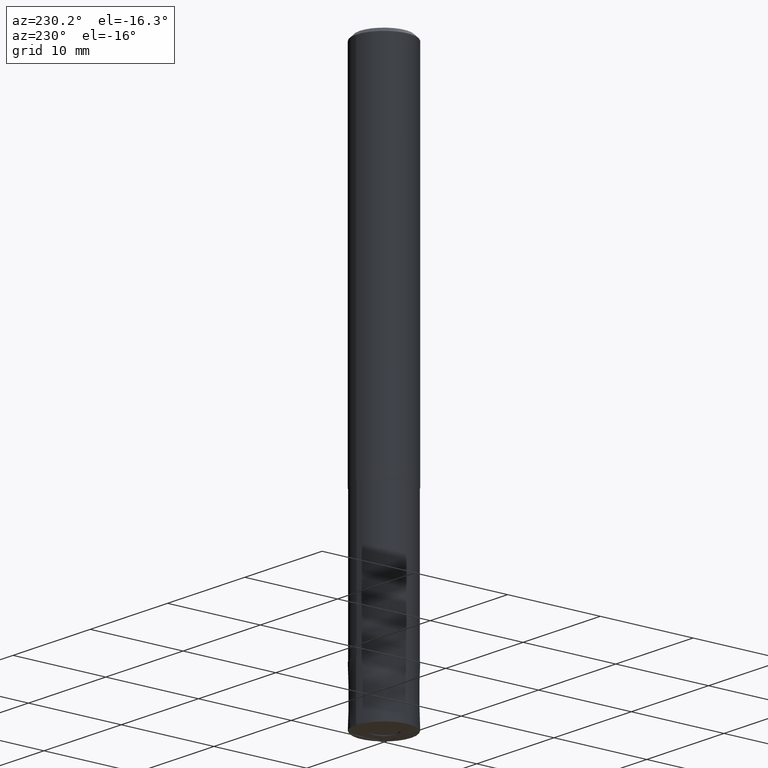
[diagram: clean part render]
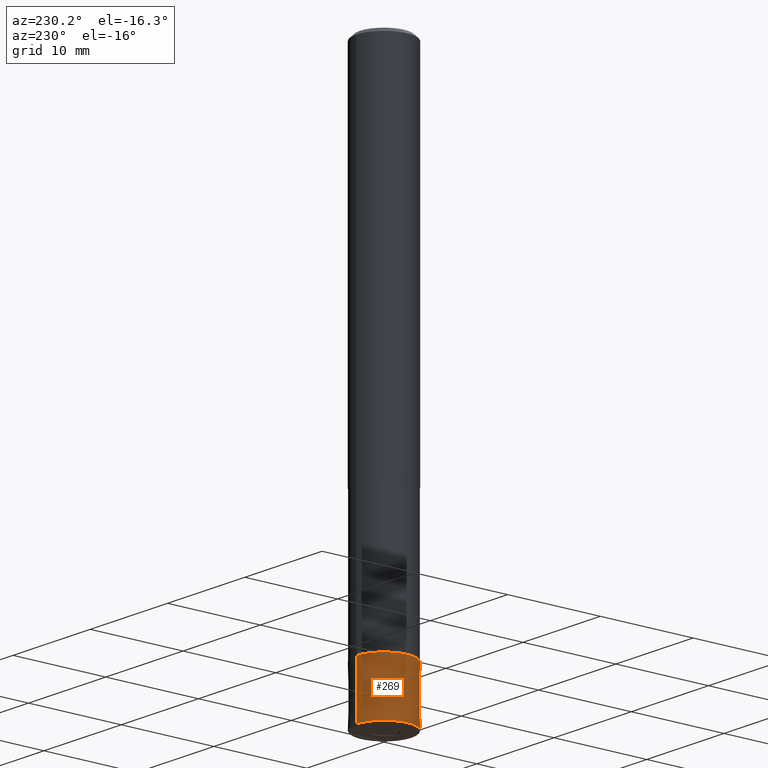
[diagram: same view with one face highlighted and labeled with its STEP entity id]
A machine part, auxiliary view. The second image highlights one B-rep face of the part: STEP entity #269.
In plain terms, the highlighted conical surface has half-angle 0.001 deg.
Its self-contained STEP definition (entity closure, byte-faithful):
#121=VERTEX_POINT('',#309);
#205=EDGE_CURVE('',#121,#209,#405,.T.);
#209=VERTEX_POINT('',#409);
#215=EDGE_CURVE('',#273,#209,#415,.T.);
#233=EDGE_CURVE('',#121,#277,#434,.T.);
#237=EDGE_CURVE('',#277,#273,#439,.T.);
#269=ADVANCED_FACE('',(#477),#478,.T.);
#273=VERTEX_POINT('',#482);
#277=VERTEX_POINT('',#486);
#309=CARTESIAN_POINT('',(3.67381906146713E-016,-3.0,-59.9));
#405=CIRCLE('',#632,3.0);
#409=CARTESIAN_POINT('',(0.0,3.0,-59.9));
#415=LINE('',#646,#647);
#434=LINE('',#671,#672);
#439=CIRCLE('',#678,2.9999);
#477=FACE_OUTER_BOUND('',#726,.T.);
#478=CONICAL_SURFACE('',#727,2.99995,1.69491525407856E-005);
#482=CARTESIAN_POINT('',(0.0,2.9999,-54.0));
#486=CARTESIAN_POINT('',(3.67369660083175E-016,-2.9999,-54.0));
#632=AXIS2_PLACEMENT_3D('',#880,#881,#882);
#646=CARTESIAN_POINT('',(-3.67375783114944E-016,2.99995,-56.95));
#647=VECTOR('',#892,1.0);
#671=CARTESIAN_POINT('',(3.67375783114944E-016,-2.99995,-56.95));
#672=VECTOR('',#908,1.0);
#678=AXIS2_PLACEMENT_3D('',#915,#916,#917);
#726=EDGE_LOOP('',(#974,#975,#976,#977));
#727=AXIS2_PLACEMENT_3D('',#978,#979,#980);
#880=CARTESIAN_POINT('',(0.0,0.0,-59.9));
#881=DIRECTION('',(0.0,0.0,-1.0));
#882=DIRECTION('',(0.0,1.0,0.0));
#892=DIRECTION('',(-2.0756039892357E-021,1.69491525399741E-005,-0.999999999856363));
#908=DIRECTION('',(-2.0756039892357E-021,1.69491525399741E-005,0.999999999856363));
#915=CARTESIAN_POINT('',(0.0,0.0,-54.0));
#916=DIRECTION('',(0.0,0.0,-1.0));
#917=DIRECTION('',(0.0,1.0,0.0));
#974=ORIENTED_EDGE('',*,*,#215,.T.);
#975=ORIENTED_EDGE('',*,*,#205,.F.);
#976=ORIENTED_EDGE('',*,*,#233,.T.);
#977=ORIENTED_EDGE('',*,*,#237,.T.);
#978=CARTESIAN_POINT('',(0.0,0.0,-56.95));
#979=DIRECTION('',(0.0,-0.0,-1.0));
#980=DIRECTION('',(0.0,1.0,0.0));